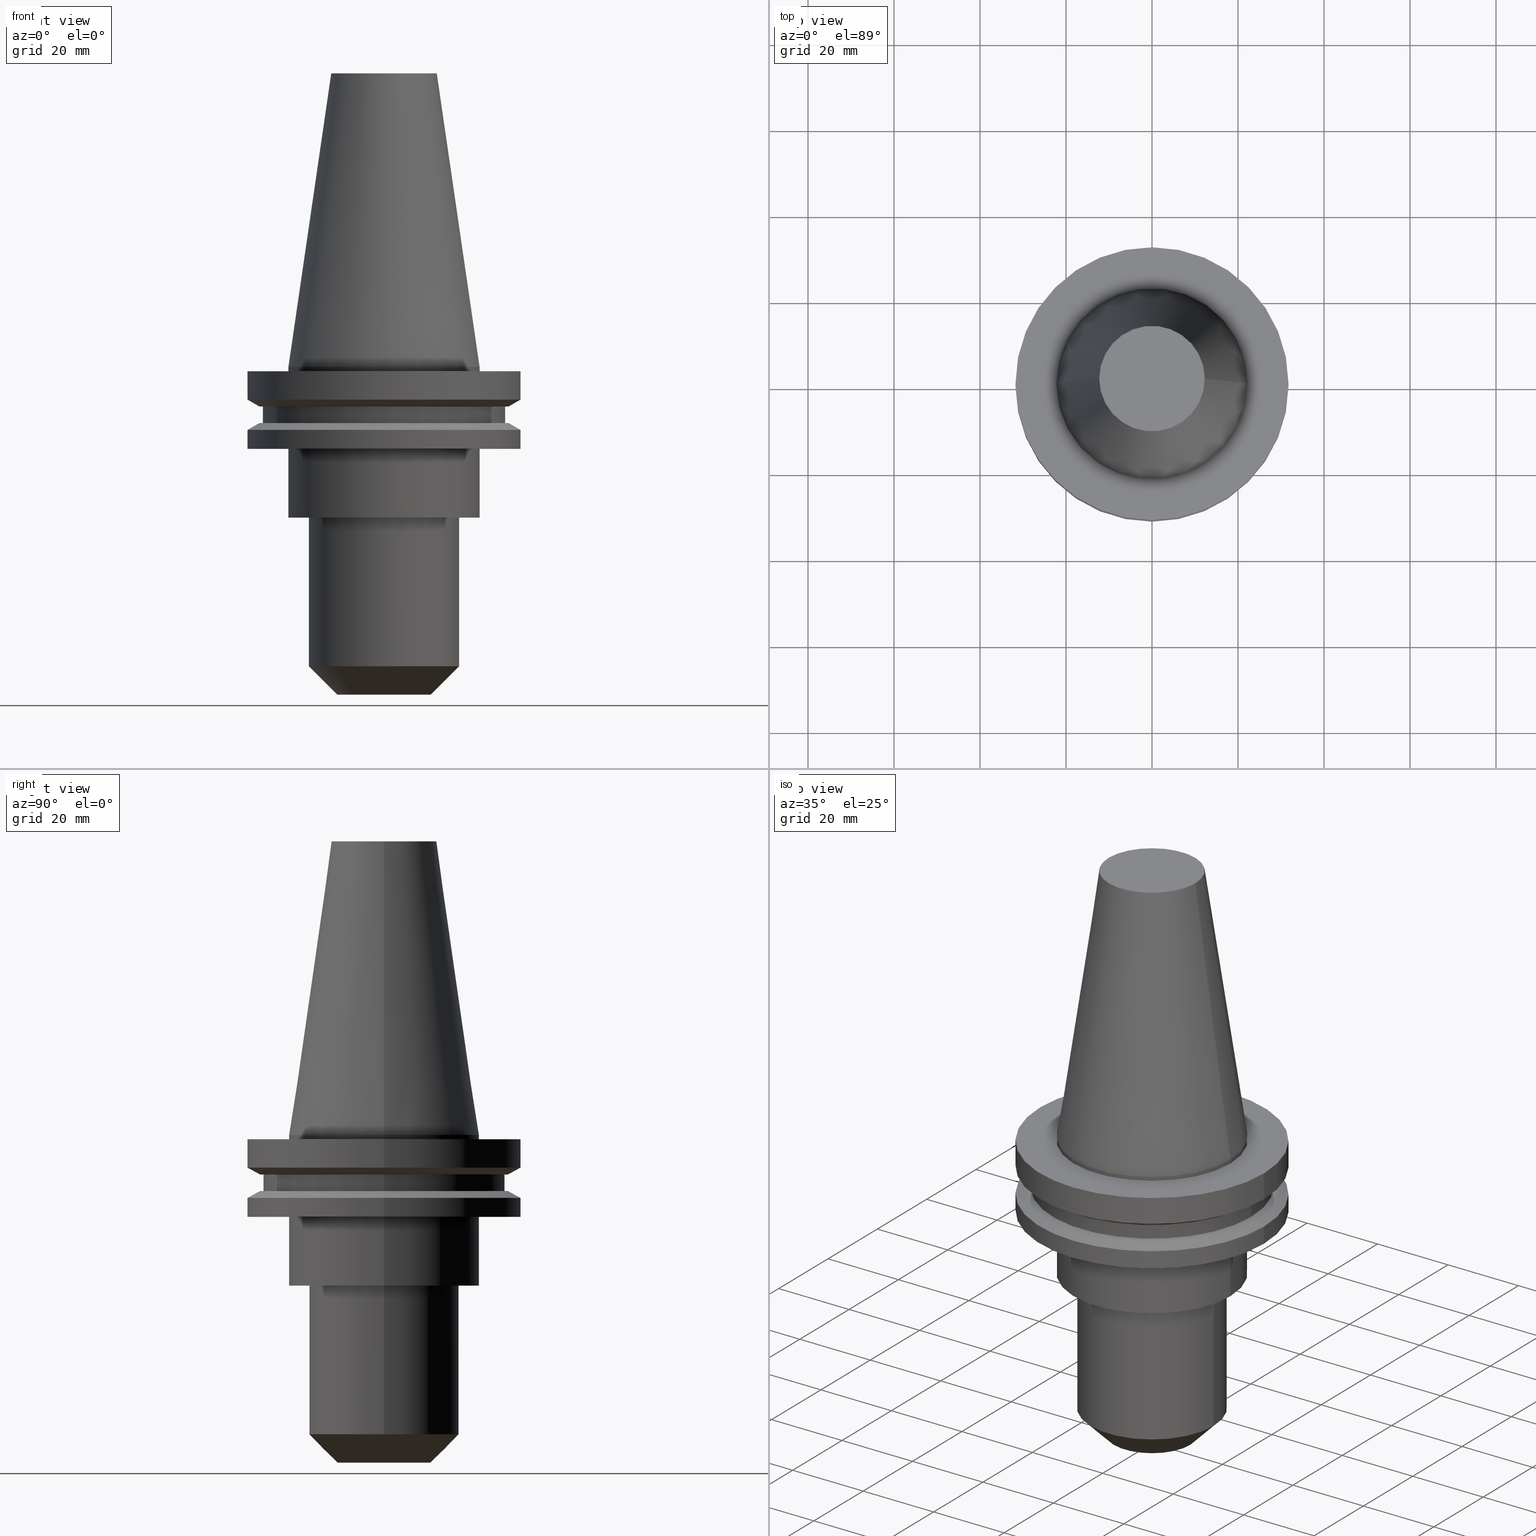
[diagram: canonical four-view strip — front | top / right | iso, engineering-drawing reading convention]
A machine part, canonical four-view strip (front | top / right | iso — engineering-drawing reading convention). The complete STEP part file that produces these views, byte-faithful:
ISO-10303-21;
HEADER;
FILE_DESCRIPTION (( 'STEP AP203' ),
    '1' );
FILE_NAME ('BCV40-EM_500-3.STEP',
    '2022-02-23T14:47:51',
    ( '' ),
    ( '' ),
    'SwSTEP 2.0',
    'SolidWorks 2021',
    '' );
FILE_SCHEMA (( 'CONFIG_CONTROL_DESIGN' ));
ENDSEC;

DATA;
#1 = CARTESIAN_POINT ( 'NONE',  ( 0.000000000000000000, 0.000000000000000000, -76.20000000000000284 ) ) ;
#2 = AXIS2_PLACEMENT_3D ( 'NONE', #677, #486, #147 ) ;
#3 = CYLINDRICAL_SURFACE ( 'NONE', #479, 28.17999999999999972 ) ;
#4 = CALENDAR_DATE ( 2022, 23, 2 ) ;
#5 = DIRECTION ( 'NONE',  ( 1.000000000000000000, 0.000000000000000000, 0.000000000000000000 ) ) ;
#6 = CARTESIAN_POINT ( 'NONE',  ( 0.000000000000000000, 0.000000000000000000, 68.25000000000000000 ) ) ;
#7 = ORIENTED_EDGE ( 'NONE', *, *, #653, .T. ) ;
#8 = PERSON_AND_ORGANIZATION ( #448, #436 ) ;
#9 = ADVANCED_FACE ( 'NONE', ( #466, #211 ), #84, .F. ) ;
#10 = DIRECTION ( 'NONE',  ( -0.000000000000000000, -0.000000000000000000, 1.000000000000000000 ) ) ;
#11 = DIRECTION ( 'NONE',  ( 1.000000000000000000, 0.000000000000000000, 0.000000000000000000 ) ) ;
#12 = ORIENTED_EDGE ( 'NONE', *, *, #563, .T. ) ;
#13 = CIRCLE ( 'NONE', #500, 22.22499999999999787 ) ;
#14 = CC_DESIGN_PERSON_AND_ORGANIZATION_ASSIGNMENT ( #8, #784, ( #227 ) ) ;
#15 = FACE_BOUND ( 'NONE', #578, .T. ) ;
#16 = VERTEX_POINT ( 'NONE', #205 ) ;
#17 = LOCAL_TIME ( 8, 47, 51.00000000000000000, #192 ) ;
#18 = EDGE_LOOP ( 'NONE', ( #798, #747 ) ) ;
#19 = EDGE_CURVE ( 'NONE', #98, #388, #710, .T. ) ;
#20 = DIRECTION ( 'NONE',  ( -0.000000000000000000, -0.000000000000000000, 1.000000000000000000 ) ) ;
#21 = DIRECTION ( 'NONE',  ( 0.7071067811865487940, 0.000000000000000000, 0.7071067811865463515 ) ) ;
#22 = VERTEX_POINT ( 'NONE', #331 ) ;
#23 = DIRECTION ( 'NONE',  ( -0.000000000000000000, -0.000000000000000000, 1.000000000000000000 ) ) ;
#24 = CARTESIAN_POINT ( 'NONE',  ( 0.000000000000000000, 0.000000000000000000, -13.05499999999999794 ) ) ;
#25 = EDGE_CURVE ( 'NONE', #109, #351, #323, .T. ) ;
#26 = ORIENTED_EDGE ( 'NONE', *, *, #686, .T. ) ;
#27 = AXIS2_PLACEMENT_3D ( 'NONE', #820, #94, #97 ) ;
#28 = CARTESIAN_POINT ( 'NONE',  ( 28.17999999999999972, 0.000000000000000000, 68.25000000000000000 ) ) ;
#29 = CYLINDRICAL_SURFACE ( 'NONE', #27, 22.22500000000000142 ) ;
#30 = CONICAL_SURFACE ( 'NONE', #266, 31.75000000000000000, 1.047197551196597853 ) ;
#31 = EDGE_LOOP ( 'NONE', ( #95, #676 ) ) ;
#32 = DIRECTION ( 'NONE',  ( 0.8660254037844389297, 0.000000000000000000, 0.4999999999999995004 ) ) ;
#33 = DIRECTION ( 'NONE',  ( -1.000000000000000000, 0.000000000000000000, 0.000000000000000000 ) ) ;
#34 = ADVANCED_FACE ( 'NONE', ( #733 ), #3, .T. ) ;
#35 = ORIENTED_EDGE ( 'NONE', *, *, #757, .F. ) ;
#36 = DIRECTION ( 'NONE',  ( 1.000000000000000000, 0.000000000000000000, 0.000000000000000000 ) ) ;
#37 = EDGE_CURVE ( 'NONE', #388, #98, #408, .T. ) ;
#38 = DIRECTION ( 'NONE',  ( -0.000000000000000000, -0.000000000000000000, 1.000000000000000000 ) ) ;
#39 = VECTOR ( 'NONE', #23, 1000.000000000000000 ) ;
#40 = VERTEX_POINT ( 'NONE', #665 ) ;
#41 = CARTESIAN_POINT ( 'NONE',  ( 31.75000000000000000, 0.000000000000000000, 68.25000000000000000 ) ) ;
#42 = CARTESIAN_POINT ( 'NONE',  ( 6.349999999999998757, 0.000000000000000000, -35.04999999999999716 ) ) ;
#43 = CIRCLE ( 'NONE', #206, 31.75000000000000000 ) ;
#44 = EDGE_LOOP ( 'NONE', ( #543, #787, #54, #332 ) ) ;
#45 = CIRCLE ( 'NONE', #168, 17.46499999999999986 ) ;
#46 = ADVANCED_FACE ( 'NONE', ( #407 ), #613, .F. ) ;
#47 = CARTESIAN_POINT ( 'NONE',  ( 0.000000000000000000, 0.000000000000000000, -13.05499999999999794 ) ) ;
#48 = FACE_OUTER_BOUND ( 'NONE', #485, .T. ) ;
#49 = ADVANCED_FACE ( 'NONE', ( #542 ), #74, .T. ) ;
#50 = VERTEX_POINT ( 'NONE', #527 ) ;
#51 = CYLINDRICAL_SURFACE ( 'NONE', #112, 28.17999999999999972 ) ;
#52 = AXIS2_PLACEMENT_3D ( 'NONE', #574, #181, #242 ) ;
#53 = EDGE_CURVE ( 'NONE', #561, #633, #460, .T. ) ;
#54 = ORIENTED_EDGE ( 'NONE', *, *, #753, .T. ) ;
#55 = DIRECTION ( 'NONE',  ( 1.000000000000000000, 0.000000000000000000, 0.000000000000000000 ) ) ;
#56 = FACE_OUTER_BOUND ( 'NONE', #687, .T. ) ;
#57 = AXIS2_PLACEMENT_3D ( 'NONE', #551, #555, #812 ) ;
#58 = EDGE_CURVE ( 'NONE', #821, #366, #838, .T. ) ;
#59 = EDGE_LOOP ( 'NONE', ( #566, #215 ) ) ;
#60 = PERSON_AND_ORGANIZATION ( #448, #436 ) ;
#61 = APPROVAL_PERSON_ORGANIZATION ( #60, #203, #383 ) ;
#62 = CARTESIAN_POINT ( 'NONE',  ( 0.000000000000000000, 0.000000000000000000, -76.20000000000000284 ) ) ;
#63 = ORIENTED_EDGE ( 'NONE', *, *, #766, .F. ) ;
#64 = CARTESIAN_POINT ( 'NONE',  ( 0.000000000000000000, 0.000000000000000000, -9.205000000000005400 ) ) ;
#65 = DIRECTION ( 'NONE',  ( -0.000000000000000000, -0.000000000000000000, 1.000000000000000000 ) ) ;
#66 = AXIS2_PLACEMENT_3D ( 'NONE', #262, #399, #5 ) ;
#67 = ORIENTED_EDGE ( 'NONE', *, *, #777, .F. ) ;
#68 = FACE_OUTER_BOUND ( 'NONE', #553, .T. ) ;
#69 = APPLICATION_CONTEXT ( 'configuration controlled 3d designs of mechanical parts and assemblies' ) ;
#70 = CARTESIAN_POINT ( 'NONE',  ( 0.000000000000000000, 0.000000000000000000, -19.04999999999999716 ) ) ;
#71 = AXIS2_PLACEMENT_3D ( 'NONE', #311, #309, #513 ) ;
#72 = ORIENTED_EDGE ( 'NONE', *, *, #749, .F. ) ;
#73 = DIRECTION ( 'NONE',  ( -0.000000000000000000, -0.000000000000000000, 1.000000000000000000 ) ) ;
#74 = CYLINDRICAL_SURFACE ( 'NONE', #234, 31.75000000000000000 ) ;
#75 = EDGE_CURVE ( 'NONE', #807, #264, #43, .T. ) ;
#76 = EDGE_LOOP ( 'NONE', ( #312, #810, #81, #453 ) ) ;
#77 = PERSON_AND_ORGANIZATION ( #448, #436 ) ;
#78 = DIRECTION ( 'NONE',  ( 1.000000000000000000, 0.000000000000000000, 0.000000000000000000 ) ) ;
#79 = DIRECTION ( 'NONE',  ( 1.000000000000000000, 0.000000000000000000, 0.000000000000000000 ) ) ;
#80 = CC_DESIGN_PERSON_AND_ORGANIZATION_ASSIGNMENT ( #77, #794, ( #91 ) ) ;
#81 = ORIENTED_EDGE ( 'NONE', *, *, #777, .T. ) ;
#82 = AXIS2_PLACEMENT_3D ( 'NONE', #322, #271, #801 ) ;
#83 = FACE_OUTER_BOUND ( 'NONE', #44, .T. ) ;
#84 = PLANE ( 'NONE',  #198 ) ;
#85 = EDGE_CURVE ( 'NONE', #154, #462, #601, .T. ) ;
#86 = ADVANCED_FACE ( 'NONE', ( #195 ), #136, .T. ) ;
#87 = ORIENTED_EDGE ( 'NONE', *, *, #609, .T. ) ;
#88 = AXIS2_PLACEMENT_3D ( 'NONE', #90, #356, #493 ) ;
#89 = LINE ( 'NONE', #623, #422 ) ;
#90 = CARTESIAN_POINT ( 'NONE',  ( 0.000000000000000000, 0.000000000000000000, 68.25000000000000000 ) ) ;
#91 = SECURITY_CLASSIFICATION ( '', '', #524 ) ;
#92 = ORIENTED_EDGE ( 'NONE', *, *, #108, .F. ) ;
#93 = CARTESIAN_POINT ( 'NONE',  ( 17.46499999999999986, 0.000000000000000000, 0.000000000000000000 ) ) ;
#94 = DIRECTION ( 'NONE',  ( -0.000000000000000000, -0.000000000000000000, 1.000000000000000000 ) ) ;
#95 = ORIENTED_EDGE ( 'NONE', *, *, #300, .T. ) ;
#96 = CARTESIAN_POINT ( 'NONE',  ( -6.349999999999998757, 7.776507174585691177E-16, 0.000000000000000000 ) ) ;
#97 = DIRECTION ( 'NONE',  ( 1.000000000000000000, 0.000000000000000000, 0.000000000000000000 ) ) ;
#98 = VERTEX_POINT ( 'NONE', #340 ) ;
#99 = AXIS2_PLACEMENT_3D ( 'NONE', #662, #38, #427 ) ;
#100 = DIRECTION ( 'NONE',  ( 1.000000000000000000, 0.000000000000000000, 0.000000000000000000 ) ) ;
#101 = ADVANCED_FACE ( 'NONE', ( #806, #478 ), #132, .F. ) ;
#102 = PRODUCT_DEFINITION_SHAPE ( 'NONE', 'NONE',  #715 ) ;
#103 = DIRECTION ( 'NONE',  ( 0.000000000000000000, -0.000000000000000000, 1.000000000000000000 ) ) ;
#104 = AXIS2_PLACEMENT_3D ( 'NONE', #47, #572, #173 ) ;
#105 = ORIENTED_EDGE ( 'NONE', *, *, #656, .T. ) ;
#106 = FACE_OUTER_BOUND ( 'NONE', #269, .T. ) ;
#107 = CYLINDRICAL_SURFACE ( 'NONE', #346, 17.46499999999999986 ) ;
#108 = EDGE_CURVE ( 'NONE', #366, #821, #730, .T. ) ;
#109 = VERTEX_POINT ( 'NONE', #417 ) ;
#110 = CARTESIAN_POINT ( 'NONE',  ( 22.22500000000000142, 0.000000000000000000, 68.25000000000000000 ) ) ;
#111 = CARTESIAN_POINT ( 'NONE',  ( 6.349999999999999645, 0.000000000000000000, -76.20000000000000284 ) ) ;
#112 = AXIS2_PLACEMENT_3D ( 'NONE', #585, #776, #700 ) ;
#113 = ORIENTED_EDGE ( 'NONE', *, *, #608, .T. ) ;
#114 = CYLINDRICAL_SURFACE ( 'NONE', #239, 31.75000000000000000 ) ;
#115 = CARTESIAN_POINT ( 'NONE',  ( 0.000000000000000000, 0.000000000000000000, -69.60000000000000853 ) ) ;
#116 = ORIENTED_EDGE ( 'NONE', *, *, #344, .T. ) ;
#117 = CIRCLE ( 'NONE', #598, 22.22500000000000142 ) ;
#118 = CARTESIAN_POINT ( 'NONE',  ( 0.000000000000000000, 0.000000000000000000, -69.60000000000000853 ) ) ;
#119 = FACE_OUTER_BOUND ( 'NONE', #291, .T. ) ;
#120 = AXIS2_PLACEMENT_3D ( 'NONE', #411, #73, #805 ) ;
#121 = ORIENTED_EDGE ( 'NONE', *, *, #630, .T. ) ;
#122 = DIRECTION ( 'NONE',  ( -0.000000000000000000, -0.000000000000000000, 1.000000000000000000 ) ) ;
#123 = AXIS2_PLACEMENT_3D ( 'NONE', #156, #103, #361 ) ;
#124 = ORIENTED_EDGE ( 'NONE', *, *, #167, .F. ) ;
#125 = PERSON_AND_ORGANIZATION ( #448, #436 ) ;
#126 = ADVANCED_FACE ( 'NONE', ( #559 ), #295, .T. ) ;
#127 = LOCAL_TIME ( 8, 47, 51.00000000000000000, #321 ) ;
#128 = DIRECTION ( 'NONE',  ( 1.000000000000000000, 0.000000000000000000, 0.000000000000000000 ) ) ;
#129 = DIRECTION ( 'NONE',  ( 1.000000000000000000, 0.000000000000000000, 0.000000000000000000 ) ) ;
#130 = PERSON_AND_ORGANIZATION ( #448, #436 ) ;
#131 = CYLINDRICAL_SURFACE ( 'NONE', #711, 22.22500000000000142 ) ;
#132 = PLANE ( 'NONE',  #804 ) ;
#133 = CARTESIAN_POINT ( 'NONE',  ( 0.000000000000000000, 0.000000000000000000, 68.25000000000000000 ) ) ;
#134 = ORIENTED_EDGE ( 'NONE', *, *, #301, .F. ) ;
#135 = EDGE_CURVE ( 'NONE', #280, #501, #13, .T. ) ;
#136 = CONICAL_SURFACE ( 'NONE', #788, 28.97919780457007732, 1.047197551196598297 ) ;
#137 = DATE_AND_TIME ( #652, #17 ) ;
#138 = DIRECTION ( 'NONE',  ( 0.000000000000000000, 0.000000000000000000, -1.000000000000000000 ) ) ;
#139 = PRODUCT_RELATED_PRODUCT_CATEGORY ( 'detail', '', ( #227 ) ) ;
#140 = CARTESIAN_POINT ( 'NONE',  ( 0.000000000000000000, 0.000000000000000000, -19.04999999999999716 ) ) ;
#141 = ORIENTED_EDGE ( 'NONE', *, *, #571, .F. ) ;
#142 = DIRECTION ( 'NONE',  ( 1.000000000000000000, 0.000000000000000000, 0.000000000000000000 ) ) ;
#143 = ADVANCED_FACE ( 'NONE', ( #621 ), #226, .F. ) ;
#144 = CARTESIAN_POINT ( 'NONE',  ( 0.000000000000000000, 0.000000000000000000, -9.205000000000005400 ) ) ;
#145 = ORIENTED_EDGE ( 'NONE', *, *, #360, .F. ) ;
#146 = VECTOR ( 'NONE', #355, 1000.000000000000000 ) ;
#147 = DIRECTION ( 'NONE',  ( 1.000000000000000000, 0.000000000000000000, 0.000000000000000000 ) ) ;
#148 = CARTESIAN_POINT ( 'NONE',  ( 0.000000000000000000, 0.000000000000000000, -35.04999999999999716 ) ) ;
#149 = VERTEX_POINT ( 'NONE', #353 ) ;
#150 = CARTESIAN_POINT ( 'NONE',  ( 0.000000000000000000, 0.000000000000000000, -76.20000000000000284 ) ) ;
#151 = EDGE_CURVE ( 'NONE', #501, #280, #278, .T. ) ;
#152 = FACE_OUTER_BOUND ( 'NONE', #469, .T. ) ;
#153 = AXIS2_PLACEMENT_3D ( 'NONE', #752, #680, #220 ) ;
#154 = VERTEX_POINT ( 'NONE', #635 ) ;
#155 = DIRECTION ( 'NONE',  ( -1.000000000000000000, 0.000000000000000000, 0.000000000000000000 ) ) ;
#156 = CARTESIAN_POINT ( 'NONE',  ( 0.000000000000000000, 22.22499999999999787, -35.04999999999999716 ) ) ;
#157 = CLOSED_SHELL ( 'NONE', ( #568, #738, #252, #447, #773, #499, #405, #697, #49, #319, #464, #251, #235, #143, #324, #237, #279, #727, #696, #34, #477, #86, #126, #101, #225, #591, #670, #9, #839, #46 ) ) ;
#158 = ORIENTED_EDGE ( 'NONE', *, *, #825, .F. ) ;
#159 = CIRCLE ( 'NONE', #341, 28.97919780457007732 ) ;
#160 = DIRECTION ( 'NONE',  ( 1.000000000000000000, 0.000000000000000000, 0.000000000000000000 ) ) ;
#161 = CARTESIAN_POINT ( 'NONE',  ( 0.000000000000000000, 31.74999999999999289, -19.04999999999999716 ) ) ;
#162 = EDGE_CURVE ( 'NONE', #761, #233, #690, .T. ) ;
#163 = ORIENTED_EDGE ( 'NONE', *, *, #627, .T. ) ;
#164 = CONICAL_SURFACE ( 'NONE', #625, 22.22500000000000142, 0.1448138465474119174 ) ;
#165 = CYLINDRICAL_SURFACE ( 'NONE', #685, 17.46499999999999986 ) ;
#166 = DIRECTION ( 'NONE',  ( 0.000000000000000000, 0.000000000000000000, -1.000000000000000000 ) ) ;
#167 = EDGE_CURVE ( 'NONE', #40, #410, #316, .T. ) ;
#168 = AXIS2_PLACEMENT_3D ( 'NONE', #616, #620, #160 ) ;
#169 = ORIENTED_EDGE ( 'NONE', *, *, #560, .T. ) ;
#170 = FACE_OUTER_BOUND ( 'NONE', #187, .T. ) ;
#171 = CARTESIAN_POINT ( 'NONE',  ( 10.86499999999998423, 0.000000000000000000, -76.20000000000000284 ) ) ;
#172 = EDGE_LOOP ( 'NONE', ( #692, #813, #310, #320 ) ) ;
#173 = DIRECTION ( 'NONE',  ( 1.000000000000000000, 0.000000000000000000, 0.000000000000000000 ) ) ;
#174 = CARTESIAN_POINT ( 'NONE',  ( 28.97919780457007732, 0.000000000000000000, -9.205000000000005400 ) ) ;
#175 = CIRCLE ( 'NONE', #120, 12.27178102086201150 ) ;
#176 = ORIENTED_EDGE ( 'NONE', *, *, #749, .T. ) ;
#177 = LINE ( 'NONE', #110, #373 ) ;
#178 = LINE ( 'NONE', #708, #428 ) ;
#179 = CIRCLE ( 'NONE', #334, 28.97919780457008088 ) ;
#180 = DIRECTION ( 'NONE',  ( 1.000000000000000000, 0.000000000000000000, 0.000000000000000000 ) ) ;
#181 = DIRECTION ( 'NONE',  ( -0.000000000000000000, -0.000000000000000000, 1.000000000000000000 ) ) ;
#182 = VERTEX_POINT ( 'NONE', #684 ) ;
#183 = CARTESIAN_POINT ( 'NONE',  ( 0.000000000000000000, 0.000000000000000000, 0.000000000000000000 ) ) ;
#184 = DIRECTION ( 'NONE',  ( 1.000000000000000000, 0.000000000000000000, 0.000000000000000000 ) ) ;
#185 = AXIS2_PLACEMENT_3D ( 'NONE', #516, #507, #780 ) ;
#186 = AXIS2_PLACEMENT_3D ( 'NONE', #317, #709, #569 ) ;
#187 = EDGE_LOOP ( 'NONE', ( #619, #840, #721, #783 ) ) ;
#188 = CALENDAR_DATE ( 2022, 23, 2 ) ;
#189 = FACE_OUTER_BOUND ( 'NONE', #337, .T. ) ;
#190 = DIRECTION ( 'NONE',  ( 0.000000000000000000, -0.000000000000000000, 1.000000000000000000 ) ) ;
#191 = ORIENTED_EDGE ( 'NONE', *, *, #495, .F. ) ;
#192 = COORDINATED_UNIVERSAL_TIME_OFFSET ( 6, 0, .BEHIND. ) ;
#193 = PRODUCT_DEFINITION_FORMATION_WITH_SPECIFIED_SOURCE ( 'ANY', '', #227, .NOT_KNOWN. ) ;
#194 = DIRECTION ( 'NONE',  ( 0.1443082272672999711, 1.767266086135276757E-17, -0.9895327864921755756 ) ) ;
#195 = FACE_OUTER_BOUND ( 'NONE', #515, .T. ) ;
#196 = ORIENTED_EDGE ( 'NONE', *, *, #135, .F. ) ;
#197 = DIRECTION ( 'NONE',  ( 1.000000000000000000, 0.000000000000000000, 0.000000000000000000 ) ) ;
#198 = AXIS2_PLACEMENT_3D ( 'NONE', #802, #473, #199 ) ;
#199 = DIRECTION ( 'NONE',  ( 1.000000000000000000, 0.000000000000000000, 0.000000000000000000 ) ) ;
#200 = VECTOR ( 'NONE', #847, 1000.000000000000000 ) ;
#201 = ORIENTED_EDGE ( 'NONE', *, *, #602, .F. ) ;
#202 = COORDINATED_UNIVERSAL_TIME_OFFSET ( 6, 0, .BEHIND. ) ;
#203 = APPROVAL ( #254, 'UNSPECIFIED' ) ;
#204 = DIRECTION ( 'NONE',  ( 1.000000000000000000, 0.000000000000000000, 0.000000000000000000 ) ) ;
#205 = CARTESIAN_POINT ( 'NONE',  ( -28.97919780457008088, 0.000000000000000000, -13.05499999999999794 ) ) ;
#206 = AXIS2_PLACEMENT_3D ( 'NONE', #719, #391, #263 ) ;
#207 = EDGE_LOOP ( 'NONE', ( #645, #169 ) ) ;
#208 = EDGE_CURVE ( 'NONE', #363, #480, #746, .T. ) ;
#209 = CARTESIAN_POINT ( 'NONE',  ( -22.22500000000000142, 0.000000000000000000, 0.000000000000000000 ) ) ;
#210 =( GEOMETRIC_REPRESENTATION_CONTEXT ( 3 ) GLOBAL_UNCERTAINTY_ASSIGNED_CONTEXT ( ( #450 ) ) GLOBAL_UNIT_ASSIGNED_CONTEXT ( ( #442, #642, #779 ) ) REPRESENTATION_CONTEXT ( 'NONE', 'WORKASPACE' ) );
#211 = FACE_BOUND ( 'NONE', #610, .T. ) ;
#212 = ORIENTED_EDGE ( 'NONE', *, *, #300, .F. ) ;
#213 = FACE_OUTER_BOUND ( 'NONE', #679, .T. ) ;
#214 = DIRECTION ( 'NONE',  ( -0.000000000000000000, -0.000000000000000000, 1.000000000000000000 ) ) ;
#215 = ORIENTED_EDGE ( 'NONE', *, *, #75, .T. ) ;
#216 = CIRCLE ( 'NONE', #484, 31.75000000000000000 ) ;
#217 = DIRECTION ( 'NONE',  ( 0.000000000000000000, 0.000000000000000000, -1.000000000000000000 ) ) ;
#218 = PLANE ( 'NONE',  #290 ) ;
#219 = EDGE_LOOP ( 'NONE', ( #92, #725 ) ) ;
#220 = DIRECTION ( 'NONE',  ( 1.000000000000000000, 0.000000000000000000, 0.000000000000000000 ) ) ;
#221 = CARTESIAN_POINT ( 'NONE',  ( 0.000000000000000000, 0.000000000000000000, -35.04999999999999716 ) ) ;
#222 = VECTOR ( 'NONE', #512, 999.9999999999998863 ) ;
#223 = ORIENTED_EDGE ( 'NONE', *, *, #753, .F. ) ;
#224 = DIRECTION ( 'NONE',  ( 0.000000000000000000, 0.000000000000000000, -1.000000000000000000 ) ) ;
#225 = ADVANCED_FACE ( 'NONE', ( #286 ), #29, .T. ) ;
#226 = PLANE ( 'NONE',  #582 ) ;
#227 = PRODUCT ( 'BCV40-EM_500-3', 'BCV40-EM_500-3', '', ( #260 ) ) ;
#228 = ORIENTED_EDGE ( 'NONE', *, *, #292, .F. ) ;
#229 = AXIS2_PLACEMENT_3D ( 'NONE', #1, #267, #197 ) ;
#230 = CARTESIAN_POINT ( 'NONE',  ( 0.000000000000000000, 0.000000000000000000, 0.000000000000000000 ) ) ;
#231 = EDGE_CURVE ( 'NONE', #351, #109, #432, .T. ) ;
#232 = DIRECTION ( 'NONE',  ( -0.000000000000000000, -0.000000000000000000, 1.000000000000000000 ) ) ;
#233 = VERTEX_POINT ( 'NONE', #816 ) ;
#234 = AXIS2_PLACEMENT_3D ( 'NONE', #268, #65, #532 ) ;
#235 = ADVANCED_FACE ( 'NONE', ( #152 ), #164, .T. ) ;
#236 = DIRECTION ( 'NONE',  ( 1.000000000000000000, 0.000000000000000000, 0.000000000000000000 ) ) ;
#237 = ADVANCED_FACE ( 'NONE', ( #435, #742 ), #218, .F. ) ;
#238 = DIRECTION ( 'NONE',  ( -0.000000000000000000, -0.000000000000000000, 1.000000000000000000 ) ) ;
#239 = AXIS2_PLACEMENT_3D ( 'NONE', #502, #841, #236 ) ;
#240 = ORIENTED_EDGE ( 'NONE', *, *, #25, .F. ) ;
#241 = CARTESIAN_POINT ( 'NONE',  ( 0.000000000000000000, 0.000000000000000000, 0.000000000000000000 ) ) ;
#242 = DIRECTION ( 'NONE',  ( 1.000000000000000000, 0.000000000000000000, 0.000000000000000000 ) ) ;
#243 = ORIENTED_EDGE ( 'NONE', *, *, #151, .F. ) ;
#244 = DIRECTION ( 'NONE',  ( -0.000000000000000000, -0.000000000000000000, 1.000000000000000000 ) ) ;
#245 = DIRECTION ( 'NONE',  ( -0.000000000000000000, -0.000000000000000000, 1.000000000000000000 ) ) ;
#246 = CIRCLE ( 'NONE', #511, 22.22500000000000142 ) ;
#247 = DIRECTION ( 'NONE',  ( -0.000000000000000000, -0.000000000000000000, 1.000000000000000000 ) ) ;
#248 = CONICAL_SURFACE ( 'NONE', #734, 10.86499999999998423, 0.7853981633974500554 ) ;
#249 = ORIENTED_EDGE ( 'NONE', *, *, #261, .F. ) ;
#250 = CARTESIAN_POINT ( 'NONE',  ( -28.17999999999999972, 3.451054679997241634E-15, -13.05499999999999794 ) ) ;
#251 = ADVANCED_FACE ( 'NONE', ( #424, #681 ), #689, .F. ) ;
#252 = ADVANCED_FACE ( 'NONE', ( #564 ), #107, .T. ) ;
#253 = EDGE_LOOP ( 'NONE', ( #474, #818, #347, #522 ) ) ;
#254 = APPROVAL_STATUS ( 'not_yet_approved' ) ;
#255 = DIRECTION ( 'NONE',  ( -0.000000000000000000, -0.000000000000000000, 1.000000000000000000 ) ) ;
#256 = CC_DESIGN_DATE_AND_TIME_ASSIGNMENT ( #534, #846, ( #91 ) ) ;
#257 = ORIENTED_EDGE ( 'NONE', *, *, #844, .T. ) ;
#258 = CONICAL_SURFACE ( 'NONE', #755, 28.97919780457007732, 1.047197551196598297 ) ;
#259 = ORIENTED_EDGE ( 'NONE', *, *, #58, .T. ) ;
#260 = MECHANICAL_CONTEXT ( 'NONE', #69, 'mechanical' ) ;
#261 = EDGE_CURVE ( 'NONE', #280, #233, #365, .T. ) ;
#262 = CARTESIAN_POINT ( 'NONE',  ( 0.000000000000000000, 0.000000000000000000, -9.205000000000005400 ) ) ;
#263 = DIRECTION ( 'NONE',  ( 1.000000000000000000, 0.000000000000000000, 0.000000000000000000 ) ) ;
#264 = VERTEX_POINT ( 'NONE', #834 ) ;
#265 = APPROVAL_STATUS ( 'not_yet_approved' ) ;
#266 = AXIS2_PLACEMENT_3D ( 'NONE', #628, #217, #492 ) ;
#267 = DIRECTION ( 'NONE',  ( -0.000000000000000000, -0.000000000000000000, 1.000000000000000000 ) ) ;
#268 = CARTESIAN_POINT ( 'NONE',  ( 0.000000000000000000, 0.000000000000000000, 68.25000000000000000 ) ) ;
#269 = EDGE_LOOP ( 'NONE', ( #382, #702, #145, #756 ) ) ;
#270 = PERSON_AND_ORGANIZATION_ROLE ( 'creator' ) ;
#271 = DIRECTION ( 'NONE',  ( 0.000000000000000000, -0.000000000000000000, 1.000000000000000000 ) ) ;
#272 = CARTESIAN_POINT ( 'NONE',  ( 0.000000000000000000, 0.000000000000000000, -9.204999999999991189 ) ) ;
#273 = AXIS2_PLACEMENT_3D ( 'NONE', #736, #138, #786 ) ;
#274 = ORIENTED_EDGE ( 'NONE', *, *, #608, .F. ) ;
#275 = PERSON_AND_ORGANIZATION_ROLE ( 'design_supplier' ) ;
#276 = CARTESIAN_POINT ( 'NONE',  ( 0.000000000000000000, 0.000000000000000000, 68.25000000000000000 ) ) ;
#277 = EDGE_LOOP ( 'NONE', ( #556, #397, #651, #491 ) ) ;
#278 = CIRCLE ( 'NONE', #663, 22.22499999999999787 ) ;
#279 = ADVANCED_FACE ( 'NONE', ( #714 ), #385, .T. ) ;
#280 = VERTEX_POINT ( 'NONE', #644 ) ;
#281 = CARTESIAN_POINT ( 'NONE',  ( 12.27178102086201150, 2.112318622904291439E-15, 68.25000000000000000 ) ) ;
#282 = APPROVAL_PERSON_ORGANIZATION ( #130, #781, #588 ) ;
#283 = CARTESIAN_POINT ( 'NONE',  ( 0.000000000000000000, 22.22499999999999787, -35.04999999999999716 ) ) ;
#284 = VERTEX_POINT ( 'NONE', #510 ) ;
#285 = FACE_OUTER_BOUND ( 'NONE', #358, .T. ) ;
#286 = FACE_OUTER_BOUND ( 'NONE', #76, .T. ) ;
#287 = ORIENTED_EDGE ( 'NONE', *, *, #151, .T. ) ;
#288 = DIRECTION ( 'NONE',  ( -0.8660254037844387076, 0.000000000000000000, -0.4999999999999998890 ) ) ;
#289 = DIRECTION ( 'NONE',  ( -0.000000000000000000, -0.000000000000000000, 1.000000000000000000 ) ) ;
#290 = AXIS2_PLACEMENT_3D ( 'NONE', #161, #431, #750 ) ;
#291 = EDGE_LOOP ( 'NONE', ( #830, #287, #826, #845 ) ) ;
#292 = EDGE_CURVE ( 'NONE', #480, #462, #384, .T. ) ;
#293 = DIRECTION ( 'NONE',  ( 1.000000000000000000, 0.000000000000000000, 0.000000000000000000 ) ) ;
#294 = MANIFOLD_SOLID_BREP ( 'EM', #157 ) ;
#295 = CYLINDRICAL_SURFACE ( 'NONE', #88, 31.75000000000000000 ) ;
#296 = AXIS2_PLACEMENT_3D ( 'NONE', #758, #20, #100 ) ;
#297 = VERTEX_POINT ( 'NONE', #314 ) ;
#298 = DIRECTION ( 'NONE',  ( 1.000000000000000000, 0.000000000000000000, 0.000000000000000000 ) ) ;
#299 = CARTESIAN_POINT ( 'NONE',  ( 0.000000000000000000, 0.000000000000000000, 0.000000000000000000 ) ) ;
#300 = EDGE_CURVE ( 'NONE', #233, #761, #246, .T. ) ;
#301 = EDGE_CURVE ( 'NONE', #50, #149, #445, .T. ) ;
#302 = ORIENTED_EDGE ( 'NONE', *, *, #85, .T. ) ;
#303 = CIRCLE ( 'NONE', #413, 12.27178102086201150 ) ;
#304 = DIRECTION ( 'NONE',  ( -0.000000000000000000, -0.000000000000000000, 1.000000000000000000 ) ) ;
#305 = DIRECTION ( 'NONE',  ( 1.000000000000000000, 0.000000000000000000, 0.000000000000000000 ) ) ;
#306 = VERTEX_POINT ( 'NONE', #111 ) ;
#307 = CIRCLE ( 'NONE', #186, 31.75000000000000000 ) ;
#308 = DIRECTION ( 'NONE',  ( 1.000000000000000000, 0.000000000000000000, 0.000000000000000000 ) ) ;
#309 = DIRECTION ( 'NONE',  ( -0.000000000000000000, -0.000000000000000000, 1.000000000000000000 ) ) ;
#310 = ORIENTED_EDGE ( 'NONE', *, *, #637, .T. ) ;
#311 = CARTESIAN_POINT ( 'NONE',  ( 0.000000000000000000, 0.000000000000000000, 68.25000000000000000 ) ) ;
#312 = ORIENTED_EDGE ( 'NONE', *, *, #785, .F. ) ;
#313 = CIRCLE ( 'NONE', #636, 17.46499999999999986 ) ;
#314 = CARTESIAN_POINT ( 'NONE',  ( 31.75000000000000000, 0.000000000000000000, -14.65472339340266572 ) ) ;
#315 = CARTESIAN_POINT ( 'NONE',  ( -22.22500000000000142, 2.721777511104992849E-15, 68.25000000000000000 ) ) ;
#316 = CIRCLE ( 'NONE', #650, 28.17999999999999972 ) ;
#317 = CARTESIAN_POINT ( 'NONE',  ( 0.000000000000000000, 0.000000000000000000, -14.65472339340266572 ) ) ;
#318 = AXIS2_PLACEMENT_3D ( 'NONE', #150, #497, #293 ) ;
#319 = ADVANCED_FACE ( 'NONE', ( #48 ), #649, .T. ) ;
#320 = ORIENTED_EDGE ( 'NONE', *, *, #609, .F. ) ;
#321 = COORDINATED_UNIVERSAL_TIME_OFFSET ( 6, 0, .BEHIND. ) ;
#322 = CARTESIAN_POINT ( 'NONE',  ( 0.000000000000000000, 28.97919780457007732, -9.204999999999996518 ) ) ;
#323 = CIRCLE ( 'NONE', #646, 22.22500000000000142 ) ;
#324 = ADVANCED_FACE ( 'NONE', ( #119 ), #443, .T. ) ;
#325 = EDGE_LOOP ( 'NONE', ( #803, #302, #228, #342 ) ) ;
#326 = COORDINATED_UNIVERSAL_TIME_OFFSET ( 6, 0, .BEHIND. ) ;
#327 = CARTESIAN_POINT ( 'NONE',  ( -31.75000000000000000, 3.888253587292846476E-15, 68.25000000000000000 ) ) ;
#328 = DIRECTION ( 'NONE',  ( -0.000000000000000000, -0.000000000000000000, 1.000000000000000000 ) ) ;
#329 = VECTOR ( 'NONE', #194, 999.9999999999998863 ) ;
#330 = CARTESIAN_POINT ( 'NONE',  ( -6.350000000000000533, 7.776507174585693149E-16, -76.20000000000000284 ) ) ;
#331 = CARTESIAN_POINT ( 'NONE',  ( -12.27178102086201150, 0.000000000000000000, 68.25000000000000000 ) ) ;
#332 = ORIENTED_EDGE ( 'NONE', *, *, #108, .T. ) ;
#333 = APPROVAL_STATUS ( 'not_yet_approved' ) ;
#334 = AXIS2_PLACEMENT_3D ( 'NONE', #509, #245, #703 ) ;
#335 = CARTESIAN_POINT ( 'NONE',  ( 17.46499999999999986, 0.000000000000000000, -35.04999999999999716 ) ) ;
#336 = DIRECTION ( 'NONE',  ( -0.8660254037844389297, 1.060575238724907285E-16, 0.4999999999999995004 ) ) ;
#337 = EDGE_LOOP ( 'NONE', ( #549, #641 ) ) ;
#338 = LINE ( 'NONE', #459, #782 ) ;
#339 = AXIS2_PLACEMENT_3D ( 'NONE', #70, #401, #597 ) ;
#340 = CARTESIAN_POINT ( 'NONE',  ( -31.74999999999999289, 3.888253587292845687E-15, -19.04999999999999716 ) ) ;
#341 = AXIS2_PLACEMENT_3D ( 'NONE', #717, #726, #128 ) ;
#342 = ORIENTED_EDGE ( 'NONE', *, *, #208, .F. ) ;
#343 = DIRECTION ( 'NONE',  ( -1.000000000000000000, 0.000000000000000000, -0.000000000000000000 ) ) ;
#344 = EDGE_CURVE ( 'NONE', #297, #284, #307, .T. ) ;
#345 = ORIENTED_EDGE ( 'NONE', *, *, #231, .F. ) ;
#346 = AXIS2_PLACEMENT_3D ( 'NONE', #299, #232, #498 ) ;
#347 = ORIENTED_EDGE ( 'NONE', *, *, #375, .T. ) ;
#348 = CYLINDRICAL_SURFACE ( 'NONE', #296, 6.349999999999998757 ) ;
#349 = CC_DESIGN_APPROVAL ( #452, ( #91 ) ) ;
#350 = DIRECTION ( 'NONE',  ( -0.000000000000000000, -0.000000000000000000, 1.000000000000000000 ) ) ;
#351 = VERTEX_POINT ( 'NONE', #577 ) ;
#352 = CARTESIAN_POINT ( 'NONE',  ( 0.000000000000000000, 0.000000000000000000, -35.04999999999999716 ) ) ;
#353 = CARTESIAN_POINT ( 'NONE',  ( 28.17999999999999972, 0.000000000000000000, -9.204999999999991189 ) ) ;
#354 = ORIENTED_EDGE ( 'NONE', *, *, #53, .F. ) ;
#355 = DIRECTION ( 'NONE',  ( -0.000000000000000000, -0.000000000000000000, 1.000000000000000000 ) ) ;
#356 = DIRECTION ( 'NONE',  ( -0.000000000000000000, -0.000000000000000000, 1.000000000000000000 ) ) ;
#357 = VECTOR ( 'NONE', #336, 1000.000000000000000 ) ;
#358 = EDGE_LOOP ( 'NONE', ( #72, #638, #116, #744 ) ) ;
#359 = CARTESIAN_POINT ( 'NONE',  ( 0.000000000000000000, 28.17999999999999972, -13.05499999999999794 ) ) ;
#360 = EDGE_CURVE ( 'NONE', #264, #807, #216, .T. ) ;
#361 = DIRECTION ( 'NONE',  ( 1.000000000000000000, 0.000000000000000000, 0.000000000000000000 ) ) ;
#362 = CONICAL_SURFACE ( 'NONE', #558, 31.75000000000000000, 1.047197551196597853 ) ;
#363 = VERTEX_POINT ( 'NONE', #171 ) ;
#364 = DIRECTION ( 'NONE',  ( -0.000000000000000000, -0.000000000000000000, 1.000000000000000000 ) ) ;
#365 = LINE ( 'NONE', #809, #760 ) ;
#366 = VERTEX_POINT ( 'NONE', #42 ) ;
#367 = VECTOR ( 'NONE', #611, 1000.000000000000000 ) ;
#368 = CYLINDRICAL_SURFACE ( 'NONE', #546, 6.349999999999998757 ) ;
#369 = DIRECTION ( 'NONE',  ( -0.000000000000000000, -0.000000000000000000, 1.000000000000000000 ) ) ;
#370 = ORIENTED_EDGE ( 'NONE', *, *, #627, .F. ) ;
#371 = DIRECTION ( 'NONE',  ( -0.000000000000000000, -0.000000000000000000, 1.000000000000000000 ) ) ;
#372 = DIRECTION ( 'NONE',  ( -0.000000000000000000, -0.000000000000000000, 1.000000000000000000 ) ) ;
#373 = VECTOR ( 'NONE', #304, 1000.000000000000000 ) ;
#374 = ORIENTED_EDGE ( 'NONE', *, *, #766, .T. ) ;
#375 = EDGE_CURVE ( 'NONE', #393, #264, #837, .T. ) ;
#376 = DIRECTION ( 'NONE',  ( -0.000000000000000000, -0.000000000000000000, 1.000000000000000000 ) ) ;
#377 = CARTESIAN_POINT ( 'NONE',  ( 31.74999999999999289, 0.000000000000000000, -19.04999999999999716 ) ) ;
#378 = EDGE_CURVE ( 'NONE', #182, #297, #178, .T. ) ;
#379 = CIRCLE ( 'NONE', #52, 31.75000000000000000 ) ;
#380 = CARTESIAN_POINT ( 'NONE',  ( 0.000000000000000000, 0.000000000000000000, -1.000000000000000888 ) ) ;
#381 = CC_DESIGN_PERSON_AND_ORGANIZATION_ASSIGNMENT ( #799, #270, ( #715 ) ) ;
#382 = ORIENTED_EDGE ( 'NONE', *, *, #418, .T. ) ;
#383 = APPROVAL_ROLE ( '' ) ;
#384 = CIRCLE ( 'NONE', #612, 17.46499999999999986 ) ;
#385 = CYLINDRICAL_SURFACE ( 'NONE', #772, 31.75000000000000000 ) ;
#386 = EDGE_CURVE ( 'NONE', #462, #480, #454, .T. ) ;
#387 = LOCAL_TIME ( 8, 47, 51.00000000000000000, #713 ) ;
#388 = VERTEX_POINT ( 'NONE', #377 ) ;
#389 = CALENDAR_DATE ( 2022, 23, 2 ) ;
#390 = CARTESIAN_POINT ( 'NONE',  ( 0.000000000000000000, 0.000000000000000000, -76.20000000000000284 ) ) ;
#391 = DIRECTION ( 'NONE',  ( -0.000000000000000000, -0.000000000000000000, 1.000000000000000000 ) ) ;
#392 = APPLICATION_CONTEXT ( 'configuration controlled 3d designs of mechanical parts and assemblies' ) ;
#393 = VERTEX_POINT ( 'NONE', #647 ) ;
#394 = SHAPE_DEFINITION_REPRESENTATION ( #102, #797 ) ;
#395 = CARTESIAN_POINT ( 'NONE',  ( 22.22500000000000142, 2.721777511104992849E-15, 0.000000000000000000 ) ) ;
#396 = CARTESIAN_POINT ( 'NONE',  ( 0.000000000000000000, 31.75000000000000000, -0.9999999999999995559 ) ) ;
#397 = ORIENTED_EDGE ( 'NONE', *, *, #19, .T. ) ;
#398 = PERSON_AND_ORGANIZATION_ROLE ( 'creator' ) ;
#399 = DIRECTION ( 'NONE',  ( -0.000000000000000000, -0.000000000000000000, 1.000000000000000000 ) ) ;
#400 = AXIS2_PLACEMENT_3D ( 'NONE', #503, #369, #831 ) ;
#401 = DIRECTION ( 'NONE',  ( -0.000000000000000000, -0.000000000000000000, 1.000000000000000000 ) ) ;
#402 = ORIENTED_EDGE ( 'NONE', *, *, #167, .T. ) ;
#403 = PERSON_AND_ORGANIZATION ( #448, #436 ) ;
#404 = VECTOR ( 'NONE', #416, 1000.000000000000000 ) ;
#405 = ADVANCED_FACE ( 'NONE', ( #56 ), #51, .T. ) ;
#406 = CARTESIAN_POINT ( 'NONE',  ( 0.000000000000000000, 0.000000000000000000, -13.05499999999999794 ) ) ;
#407 = FACE_OUTER_BOUND ( 'NONE', #219, .T. ) ;
#408 = CIRCLE ( 'NONE', #590, 31.74999999999999289 ) ;
#409 = EDGE_CURVE ( 'NONE', #284, #297, #379, .T. ) ;
#410 = VERTEX_POINT ( 'NONE', #250 ) ;
#411 = CARTESIAN_POINT ( 'NONE',  ( 0.000000000000000000, 0.000000000000000000, 68.25000000000000000 ) ) ;
#412 = DIRECTION ( 'NONE',  ( 0.000000000000000000, 0.000000000000000000, -1.000000000000000000 ) ) ;
#413 = AXIS2_PLACEMENT_3D ( 'NONE', #276, #10, #541 ) ;
#414 = CC_DESIGN_PERSON_AND_ORGANIZATION_ASSIGNMENT ( #403, #398, ( #193 ) ) ;
#415 = EDGE_LOOP ( 'NONE', ( #735, #587, #470, #672 ) ) ;
#416 = DIRECTION ( 'NONE',  ( -0.000000000000000000, -0.000000000000000000, 1.000000000000000000 ) ) ;
#417 = CARTESIAN_POINT ( 'NONE',  ( 22.22500000000000142, 0.000000000000000000, -1.000000000000000888 ) ) ;
#418 = EDGE_CURVE ( 'NONE', #393, #633, #800, .T. ) ;
#419 = AXIS2_PLACEMENT_3D ( 'NONE', #594, #796, #11 ) ;
#420 = EDGE_LOOP ( 'NONE', ( #158, #832 ) ) ;
#421 = FACE_OUTER_BOUND ( 'NONE', #603, .T. ) ;
#422 = VECTOR ( 'NONE', #288, 1000.000000000000000 ) ;
#423 = EDGE_CURVE ( 'NONE', #306, #518, #536, .T. ) ;
#424 = FACE_OUTER_BOUND ( 'NONE', #429, .T. ) ;
#425 = EDGE_LOOP ( 'NONE', ( #570, #121, #259, #223 ) ) ;
#426 = DIRECTION ( 'NONE',  ( 1.000000000000000000, 0.000000000000000000, 0.000000000000000000 ) ) ;
#427 = DIRECTION ( 'NONE',  ( 1.000000000000000000, 0.000000000000000000, 0.000000000000000000 ) ) ;
#428 = VECTOR ( 'NONE', #439, 1000.000000000000000 ) ;
#429 = EDGE_LOOP ( 'NONE', ( #196, #243 ) ) ;
#430 = LINE ( 'NONE', #28, #39 ) ;
#431 = DIRECTION ( 'NONE',  ( 0.000000000000000000, -0.000000000000000000, 1.000000000000000000 ) ) ;
#432 = CIRCLE ( 'NONE', #57, 22.22500000000000142 ) ;
#433 = ORIENTED_EDGE ( 'NONE', *, *, #844, .F. ) ;
#434 = LINE ( 'NONE', #96, #404 ) ;
#435 = FACE_OUTER_BOUND ( 'NONE', #18, .T. ) ;
#436 = ORGANIZATION ( 'UNSPECIFIED', 'UNSPECIFIED', '' ) ;
#437 = VERTEX_POINT ( 'NONE', #174 ) ;
#438 = CARTESIAN_POINT ( 'NONE',  ( -22.22500000000000142, 0.000000000000000000, 0.000000000000000000 ) ) ;
#439 = DIRECTION ( 'NONE',  ( 0.8660254037844387076, 1.060575238724906915E-16, -0.4999999999999998890 ) ) ;
#440 = VERTEX_POINT ( 'NONE', #209 ) ;
#441 = VECTOR ( 'NONE', #526, 1000.000000000000000 ) ;
#442 =( LENGTH_UNIT ( ) NAMED_UNIT ( * ) SI_UNIT ( .MILLI., .METRE. ) );
#443 = CYLINDRICAL_SURFACE ( 'NONE', #71, 22.22500000000000142 ) ;
#444 = ORIENTED_EDGE ( 'NONE', *, *, #607, .F. ) ;
#445 = CIRCLE ( 'NONE', #829, 28.17999999999999972 ) ;
#446 = CARTESIAN_POINT ( 'NONE',  ( 0.000000000000000000, 0.000000000000000000, 68.25000000000000000 ) ) ;
#447 = ADVANCED_FACE ( 'NONE', ( #600 ), #131, .T. ) ;
#448 = PERSON ( 'UNSPECIFIED', 'UNSPECIFIED', 'UNSPECIFIED', ('UNSPECIFIED'), ('UNSPECIFIED'), ('UNSPECIFIED') ) ;
#449 = CARTESIAN_POINT ( 'NONE',  ( 0.000000000000000000, 0.000000000000000000, -76.20000000000000284 ) ) ;
#450 = UNCERTAINTY_MEASURE_WITH_UNIT (LENGTH_MEASURE( 1.000000000000000082E-05 ), #442, 'distance_accuracy_value', 'NONE');
#451 = DIRECTION ( 'NONE',  ( 1.000000000000000000, 0.000000000000000000, 0.000000000000000000 ) ) ;
#452 = APPROVAL ( #333, 'UNSPECIFIED' ) ;
#453 = ORIENTED_EDGE ( 'NONE', *, *, #653, .F. ) ;
#454 = CIRCLE ( 'NONE', #579, 17.46499999999999986 ) ;
#455 = EDGE_CURVE ( 'NONE', #501, #761, #338, .T. ) ;
#456 = EDGE_CURVE ( 'NONE', #561, #437, #159, .T. ) ;
#457 = CARTESIAN_POINT ( 'NONE',  ( 31.75000000000000000, 0.000000000000000000, 68.25000000000000000 ) ) ;
#458 = APPROVAL_DATE_TIME ( #530, #452 ) ;
#459 = CARTESIAN_POINT ( 'NONE',  ( -22.22500000000000142, 2.721777511104992849E-15, 68.25000000000000000 ) ) ;
#460 = LINE ( 'NONE', #671, #357 ) ;
#461 = AXIS2_PLACEMENT_3D ( 'NONE', #584, #774, #180 ) ;
#462 = VERTEX_POINT ( 'NONE', #795 ) ;
#463 = DATE_AND_TIME ( #731, #387 ) ;
#464 = ADVANCED_FACE ( 'NONE', ( #68 ), #848, .T. ) ;
#465 = FACE_OUTER_BOUND ( 'NONE', #778, .T. ) ;
#466 = FACE_OUTER_BOUND ( 'NONE', #420, .T. ) ;
#467 = ORIENTED_EDGE ( 'NONE', *, *, #637, .F. ) ;
#468 = FACE_OUTER_BOUND ( 'NONE', #325, .T. ) ;
#469 = EDGE_LOOP ( 'NONE', ( #191, #141, #374, #7 ) ) ;
#470 = ORIENTED_EDGE ( 'NONE', *, *, #344, .F. ) ;
#471 = DIRECTION ( 'NONE',  ( -0.000000000000000000, -0.000000000000000000, 1.000000000000000000 ) ) ;
#472 = VECTOR ( 'NONE', #793, 1000.000000000000000 ) ;
#473 = DIRECTION ( 'NONE',  ( 0.000000000000000000, -0.000000000000000000, 1.000000000000000000 ) ) ;
#474 = ORIENTED_EDGE ( 'NONE', *, *, #544, .F. ) ;
#475 = VECTOR ( 'NONE', #376, 1000.000000000000000 ) ;
#476 = DIRECTION ( 'NONE',  ( -0.000000000000000000, -0.000000000000000000, 1.000000000000000000 ) ) ;
#477 = ADVANCED_FACE ( 'NONE', ( #189, #732 ), #852, .F. ) ;
#478 = FACE_OUTER_BOUND ( 'NONE', #59, .T. ) ;
#479 = AXIS2_PLACEMENT_3D ( 'NONE', #6, #548, #79 ) ;
#480 = VERTEX_POINT ( 'NONE', #593 ) ;
#481 = DIRECTION ( 'NONE',  ( 0.000000000000000000, 0.000000000000000000, -1.000000000000000000 ) ) ;
#482 = EDGE_CURVE ( 'NONE', #154, #363, #565, .T. ) ;
#483 = DIRECTION ( 'NONE',  ( -1.000000000000000000, 0.000000000000000000, -0.000000000000000000 ) ) ;
#484 = AXIS2_PLACEMENT_3D ( 'NONE', #380, #581, #451 ) ;
#485 = EDGE_LOOP ( 'NONE', ( #765, #626, #212, #249 ) ) ;
#486 = DIRECTION ( 'NONE',  ( -0.000000000000000000, -0.000000000000000000, 1.000000000000000000 ) ) ;
#487 = DIRECTION ( 'NONE',  ( 1.000000000000000000, 0.000000000000000000, 0.000000000000000000 ) ) ;
#488 = ORIENTED_EDGE ( 'NONE', *, *, #418, .F. ) ;
#489 = CARTESIAN_POINT ( 'NONE',  ( -31.75000000000000000, 3.888253587292846476E-15, -7.605276606597335842 ) ) ;
#490 = CARTESIAN_POINT ( 'NONE',  ( 0.000000000000000000, 0.000000000000000000, 0.000000000000000000 ) ) ;
#491 = ORIENTED_EDGE ( 'NONE', *, *, #409, .F. ) ;
#492 = DIRECTION ( 'NONE',  ( -1.000000000000000000, 0.000000000000000000, 0.000000000000000000 ) ) ;
#493 = DIRECTION ( 'NONE',  ( 1.000000000000000000, 0.000000000000000000, 0.000000000000000000 ) ) ;
#494 = CONICAL_SURFACE ( 'NONE', #229, 10.86499999999998423, 0.7853981633974500554 ) ;
#495 = EDGE_CURVE ( 'NONE', #657, #505, #531, .T. ) ;
#496 = ORIENTED_EDGE ( 'NONE', *, *, #495, .T. ) ;
#497 = DIRECTION ( 'NONE',  ( -0.000000000000000000, -0.000000000000000000, 1.000000000000000000 ) ) ;
#498 = DIRECTION ( 'NONE',  ( 1.000000000000000000, 0.000000000000000000, 0.000000000000000000 ) ) ;
#499 = ADVANCED_FACE ( 'NONE', ( #465 ), #258, .T. ) ;
#500 = AXIS2_PLACEMENT_3D ( 'NONE', #221, #350, #617 ) ;
#501 = VERTEX_POINT ( 'NONE', #589 ) ;
#502 = CARTESIAN_POINT ( 'NONE',  ( 0.000000000000000000, 0.000000000000000000, 68.25000000000000000 ) ) ;
#503 = CARTESIAN_POINT ( 'NONE',  ( 0.000000000000000000, 0.000000000000000000, 68.25000000000000000 ) ) ;
#504 = CC_DESIGN_APPROVAL ( #781, ( #193 ) ) ;
#505 = VERTEX_POINT ( 'NONE', #395 ) ;
#506 = DIRECTION ( 'NONE',  ( -0.000000000000000000, -0.000000000000000000, 1.000000000000000000 ) ) ;
#507 = DIRECTION ( 'NONE',  ( -0.000000000000000000, -0.000000000000000000, 1.000000000000000000 ) ) ;
#508 = ORIENTED_EDGE ( 'NONE', *, *, #25, .T. ) ;
#509 = CARTESIAN_POINT ( 'NONE',  ( 0.000000000000000000, 0.000000000000000000, -13.05499999999999794 ) ) ;
#510 = CARTESIAN_POINT ( 'NONE',  ( -31.75000000000000000, 3.888253587292846476E-15, -14.65472339340266572 ) ) ;
#511 = AXIS2_PLACEMENT_3D ( 'NONE', #843, #122, #654 ) ;
#512 = DIRECTION ( 'NONE',  ( -0.1443082272672999711, 0.000000000000000000, -0.9895327864921755756 ) ) ;
#513 = DIRECTION ( 'NONE',  ( 1.000000000000000000, 0.000000000000000000, 0.000000000000000000 ) ) ;
#514 = AXIS2_PLACEMENT_3D ( 'NONE', #770, #506, #55 ) ;
#515 = EDGE_LOOP ( 'NONE', ( #354, #667, #854, #35 ) ) ;
#516 = CARTESIAN_POINT ( 'NONE',  ( 0.000000000000000000, 0.000000000000000000, -7.605276606597335842 ) ) ;
#517 = EDGE_CURVE ( 'NONE', #98, #284, #521, .T. ) ;
#518 = VERTEX_POINT ( 'NONE', #330 ) ;
#519 = APPROVAL_DATE_TIME ( #137, #781 ) ;
#520 = CIRCLE ( 'NONE', #66, 28.97919780457007732 ) ;
#521 = LINE ( 'NONE', #604, #441 ) ;
#522 = ORIENTED_EDGE ( 'NONE', *, *, #75, .F. ) ;
#523 = ORIENTED_EDGE ( 'NONE', *, *, #563, .F. ) ;
#524 = SECURITY_CLASSIFICATION_LEVEL ( 'unclassified' ) ;
#525 = AXIS2_PLACEMENT_3D ( 'NONE', #678, #289, #631 ) ;
#526 = DIRECTION ( 'NONE',  ( -0.000000000000000000, -0.000000000000000000, 1.000000000000000000 ) ) ;
#527 = CARTESIAN_POINT ( 'NONE',  ( -28.17999999999999972, 3.451054679997241634E-15, -9.204999999999991189 ) ) ;
#528 = VECTOR ( 'NONE', #32, 1000.000000000000000 ) ;
#529 = EDGE_LOOP ( 'NONE', ( #163, #751 ) ) ;
#530 = DATE_AND_TIME ( #188, #718 ) ;
#531 = LINE ( 'NONE', #658, #329 ) ;
#532 = DIRECTION ( 'NONE',  ( 1.000000000000000000, 0.000000000000000000, 0.000000000000000000 ) ) ;
#533 = ORIENTED_EDGE ( 'NONE', *, *, #586, .F. ) ;
#534 = DATE_AND_TIME ( #4, #127 ) ;
#535 = DIRECTION ( 'NONE',  ( -0.000000000000000000, -0.000000000000000000, 1.000000000000000000 ) ) ;
#536 = CIRCLE ( 'NONE', #674, 6.349999999999999645 ) ;
#537 = DIRECTION ( 'NONE',  ( -0.000000000000000000, -0.000000000000000000, 1.000000000000000000 ) ) ;
#538 = ORIENTED_EDGE ( 'NONE', *, *, #586, .T. ) ;
#539 = APPROVAL_ROLE ( '' ) ;
#540 = CC_DESIGN_PERSON_AND_ORGANIZATION_ASSIGNMENT ( #125, #275, ( #193 ) ) ;
#541 = DIRECTION ( 'NONE',  ( 1.000000000000000000, 0.000000000000000000, 0.000000000000000000 ) ) ;
#542 = FACE_OUTER_BOUND ( 'NONE', #415, .T. ) ;
#543 = ORIENTED_EDGE ( 'NONE', *, *, #630, .F. ) ;
#544 = EDGE_CURVE ( 'NONE', #633, #807, #596, .T. ) ;
#545 = EDGE_CURVE ( 'NONE', #437, #561, #520, .T. ) ;
#546 = AXIS2_PLACEMENT_3D ( 'NONE', #241, #567, #648 ) ;
#547 = DIRECTION ( 'NONE',  ( -0.000000000000000000, -0.000000000000000000, 1.000000000000000000 ) ) ;
#548 = DIRECTION ( 'NONE',  ( -0.000000000000000000, -0.000000000000000000, 1.000000000000000000 ) ) ;
#549 = ORIENTED_EDGE ( 'NONE', *, *, #545, .F. ) ;
#550 = LINE ( 'NONE', #93, #367 ) ;
#551 = CARTESIAN_POINT ( 'NONE',  ( 0.000000000000000000, 0.000000000000000000, -1.000000000000000888 ) ) ;
#552 = VECTOR ( 'NONE', #471, 1000.000000000000000 ) ;
#553 = EDGE_LOOP ( 'NONE', ( #739, #496, #682, #63 ) ) ;
#554 = CARTESIAN_POINT ( 'NONE',  ( 0.000000000000000000, 0.000000000000000000, -14.65472339340266572 ) ) ;
#555 = DIRECTION ( 'NONE',  ( -0.000000000000000000, -0.000000000000000000, 1.000000000000000000 ) ) ;
#556 = ORIENTED_EDGE ( 'NONE', *, *, #517, .F. ) ;
#557 = PLANE ( 'NONE',  #629 ) ;
#558 = AXIS2_PLACEMENT_3D ( 'NONE', #554, #748, #155 ) ;
#559 = FACE_OUTER_BOUND ( 'NONE', #253, .T. ) ;
#560 = EDGE_CURVE ( 'NONE', #657, #22, #303, .T. ) ;
#561 = VERTEX_POINT ( 'NONE', #791 ) ;
#562 = FACE_OUTER_BOUND ( 'NONE', #425, .T. ) ;
#563 = EDGE_CURVE ( 'NONE', #410, #50, #661, .T. ) ;
#564 = FACE_OUTER_BOUND ( 'NONE', #172, .T. ) ;
#565 = CIRCLE ( 'NONE', #701, 10.86499999999998423 ) ;
#566 = ORIENTED_EDGE ( 'NONE', *, *, #360, .T. ) ;
#567 = DIRECTION ( 'NONE',  ( -0.000000000000000000, -0.000000000000000000, 1.000000000000000000 ) ) ;
#568 = ADVANCED_FACE ( 'NONE', ( #468 ), #494, .T. ) ;
#569 = DIRECTION ( 'NONE',  ( 1.000000000000000000, 0.000000000000000000, 0.000000000000000000 ) ) ;
#570 = ORIENTED_EDGE ( 'NONE', *, *, #686, .F. ) ;
#571 = EDGE_CURVE ( 'NONE', #22, #657, #175, .T. ) ;
#572 = DIRECTION ( 'NONE',  ( -0.000000000000000000, -0.000000000000000000, 1.000000000000000000 ) ) ;
#573 = CC_DESIGN_SECURITY_CLASSIFICATION ( #91, ( #193 ) ) ;
#574 = CARTESIAN_POINT ( 'NONE',  ( 0.000000000000000000, 0.000000000000000000, -14.65472339340266572 ) ) ;
#575 = ORIENTED_EDGE ( 'NONE', *, *, #618, .F. ) ;
#576 = LINE ( 'NONE', #41, #694 ) ;
#577 = CARTESIAN_POINT ( 'NONE',  ( -22.22500000000000142, 2.721777511104992849E-15, -1.000000000000000888 ) ) ;
#578 = EDGE_LOOP ( 'NONE', ( #124, #533 ) ) ;
#579 = AXIS2_PLACEMENT_3D ( 'NONE', #118, #247, #704 ) ;
#580 = LINE ( 'NONE', #438, #222 ) ;
#581 = DIRECTION ( 'NONE',  ( -0.000000000000000000, -0.000000000000000000, 1.000000000000000000 ) ) ;
#582 = AXIS2_PLACEMENT_3D ( 'NONE', #759, #695, #483 ) ;
#583 = VERTEX_POINT ( 'NONE', #335 ) ;
#584 = CARTESIAN_POINT ( 'NONE',  ( 0.000000000000000000, 0.000000000000000000, -76.20000000000000284 ) ) ;
#585 = CARTESIAN_POINT ( 'NONE',  ( 0.000000000000000000, 0.000000000000000000, 68.25000000000000000 ) ) ;
#586 = EDGE_CURVE ( 'NONE', #410, #40, #741, .T. ) ;
#587 = ORIENTED_EDGE ( 'NONE', *, *, #517, .T. ) ;
#588 = APPROVAL_ROLE ( '' ) ;
#589 = CARTESIAN_POINT ( 'NONE',  ( -22.22499999999999787, 2.721777511104992454E-15, -35.04999999999999716 ) ) ;
#590 = AXIS2_PLACEMENT_3D ( 'NONE', #140, #853, #129 ) ;
#591 = ADVANCED_FACE ( 'NONE', ( #213 ), #165, .T. ) ;
#592 = ORIENTED_EDGE ( 'NONE', *, *, #632, .F. ) ;
#593 = CARTESIAN_POINT ( 'NONE',  ( 17.46499999999999986, 0.000000000000000000, -69.60000000000000853 ) ) ;
#594 = CARTESIAN_POINT ( 'NONE',  ( 0.000000000000000000, 0.000000000000000000, -35.04999999999999716 ) ) ;
#595 = EDGE_LOOP ( 'NONE', ( #523, #538, #660, #134 ) ) ;
#596 = LINE ( 'NONE', #327, #200 ) ;
#597 = DIRECTION ( 'NONE',  ( 1.000000000000000000, 0.000000000000000000, 0.000000000000000000 ) ) ;
#598 = AXIS2_PLACEMENT_3D ( 'NONE', #740, #745, #298 ) ;
#599 = EDGE_LOOP ( 'NONE', ( #508, #614, #592, #67 ) ) ;
#600 = FACE_OUTER_BOUND ( 'NONE', #599, .T. ) ;
#601 = LINE ( 'NONE', #606, #472 ) ;
#602 = EDGE_CURVE ( 'NONE', #40, #149, #430, .T. ) ;
#603 = EDGE_LOOP ( 'NONE', ( #257, #176 ) ) ;
#604 = CARTESIAN_POINT ( 'NONE',  ( -31.75000000000000000, 3.888253587292846476E-15, 68.25000000000000000 ) ) ;
#605 = AXIS2_PLACEMENT_3D ( 'NONE', #406, #669, #78 ) ;
#606 = CARTESIAN_POINT ( 'NONE',  ( -10.86499999999998423, 1.330578747273597361E-15, -76.20000000000000284 ) ) ;
#607 = EDGE_CURVE ( 'NONE', #462, #698, #683, .T. ) ;
#608 = EDGE_CURVE ( 'NONE', #583, #698, #313, .T. ) ;
#609 = EDGE_CURVE ( 'NONE', #480, #583, #550, .T. ) ;
#610 = EDGE_LOOP ( 'NONE', ( #835, #26 ) ) ;
#611 = DIRECTION ( 'NONE',  ( -0.000000000000000000, -0.000000000000000000, 1.000000000000000000 ) ) ;
#612 = AXIS2_PLACEMENT_3D ( 'NONE', #115, #238, #640 ) ;
#613 = PLANE ( 'NONE',  #743 ) ;
#614 = ORIENTED_EDGE ( 'NONE', *, *, #785, .T. ) ;
#615 = CIRCLE ( 'NONE', #153, 28.17999999999999972 ) ;
#616 = CARTESIAN_POINT ( 'NONE',  ( 0.000000000000000000, 0.000000000000000000, -35.04999999999999716 ) ) ;
#617 = DIRECTION ( 'NONE',  ( 1.000000000000000000, 0.000000000000000000, 0.000000000000000000 ) ) ;
#618 = EDGE_CURVE ( 'NONE', #437, #393, #688, .T. ) ;
#619 = ORIENTED_EDGE ( 'NONE', *, *, #85, .F. ) ;
#620 = DIRECTION ( 'NONE',  ( 0.000000000000000000, 0.000000000000000000, -1.000000000000000000 ) ) ;
#621 = FACE_OUTER_BOUND ( 'NONE', #207, .T. ) ;
#622 = EDGE_LOOP ( 'NONE', ( #240, #345 ) ) ;
#623 = CARTESIAN_POINT ( 'NONE',  ( -31.75000000000000000, 0.000000000000000000, -14.65472339340266572 ) ) ;
#624 = DIRECTION ( 'NONE',  ( -0.000000000000000000, -0.000000000000000000, 1.000000000000000000 ) ) ;
#625 = AXIS2_PLACEMENT_3D ( 'NONE', #490, #166, #33 ) ;
#626 = ORIENTED_EDGE ( 'NONE', *, *, #455, .T. ) ;
#627 = EDGE_CURVE ( 'NONE', #149, #50, #615, .T. ) ;
#628 = CARTESIAN_POINT ( 'NONE',  ( 0.000000000000000000, 0.000000000000000000, -14.65472339340266572 ) ) ;
#629 = AXIS2_PLACEMENT_3D ( 'NONE', #359, #224, #343 ) ;
#630 = EDGE_CURVE ( 'NONE', #518, #821, #434, .T. ) ;
#631 = DIRECTION ( 'NONE',  ( 1.000000000000000000, 0.000000000000000000, 0.000000000000000000 ) ) ;
#632 = EDGE_CURVE ( 'NONE', #505, #440, #817, .T. ) ;
#633 = VERTEX_POINT ( 'NONE', #489 ) ;
#634 = CARTESIAN_POINT ( 'NONE',  ( -31.75000000000000000, 3.888253587292846476E-15, -1.000000000000000888 ) ) ;
#635 = CARTESIAN_POINT ( 'NONE',  ( -10.86499999999998423, 1.734712190992225046E-15, -76.20000000000000284 ) ) ;
#636 = AXIS2_PLACEMENT_3D ( 'NONE', #352, #481, #822 ) ;
#637 = EDGE_CURVE ( 'NONE', #698, #583, #45, .T. ) ;
#638 = ORIENTED_EDGE ( 'NONE', *, *, #378, .T. ) ;
#639 = CARTESIAN_POINT ( 'NONE',  ( -6.349999999999998757, 7.776507174585691177E-16, -35.04999999999999716 ) ) ;
#640 = DIRECTION ( 'NONE',  ( 1.000000000000000000, 0.000000000000000000, 0.000000000000000000 ) ) ;
#641 = ORIENTED_EDGE ( 'NONE', *, *, #456, .F. ) ;
#642 =( NAMED_UNIT ( * ) PLANE_ANGLE_UNIT ( ) SI_UNIT ( $, .RADIAN. ) );
#643 = CIRCLE ( 'NONE', #318, 6.349999999999999645 ) ;
#644 = CARTESIAN_POINT ( 'NONE',  ( 22.22499999999999787, 0.000000000000000000, -35.04999999999999716 ) ) ;
#645 = ORIENTED_EDGE ( 'NONE', *, *, #571, .T. ) ;
#646 = AXIS2_PLACEMENT_3D ( 'NONE', #728, #328, #737 ) ;
#647 = CARTESIAN_POINT ( 'NONE',  ( 31.75000000000000000, 0.000000000000000000, -7.605276606597335842 ) ) ;
#648 = DIRECTION ( 'NONE',  ( 1.000000000000000000, 0.000000000000000000, 0.000000000000000000 ) ) ;
#649 = CYLINDRICAL_SURFACE ( 'NONE', #400, 22.22500000000000142 ) ;
#650 = AXIS2_PLACEMENT_3D ( 'NONE', #24, #624, #305 ) ;
#651 = ORIENTED_EDGE ( 'NONE', *, *, #836, .T. ) ;
#652 = CALENDAR_DATE ( 2022, 23, 2 ) ;
#653 = EDGE_CURVE ( 'NONE', #440, #505, #117, .T. ) ;
#654 = DIRECTION ( 'NONE',  ( 1.000000000000000000, 0.000000000000000000, 0.000000000000000000 ) ) ;
#655 = LOCAL_TIME ( 8, 47, 51.00000000000000000, #326 ) ;
#656 = EDGE_CURVE ( 'NONE', #16, #284, #89, .T. ) ;
#657 = VERTEX_POINT ( 'NONE', #281 ) ;
#658 = CARTESIAN_POINT ( 'NONE',  ( 22.22500000000000142, 2.721777511104992849E-15, 0.000000000000000000 ) ) ;
#659 = DIRECTION ( 'NONE',  ( 1.000000000000000000, 0.000000000000000000, 0.000000000000000000 ) ) ;
#660 = ORIENTED_EDGE ( 'NONE', *, *, #602, .T. ) ;
#661 = LINE ( 'NONE', #664, #552 ) ;
#662 = CARTESIAN_POINT ( 'NONE',  ( 0.000000000000000000, 0.000000000000000000, -35.04999999999999716 ) ) ;
#663 = AXIS2_PLACEMENT_3D ( 'NONE', #148, #754, #487 ) ;
#664 = CARTESIAN_POINT ( 'NONE',  ( -28.17999999999999972, 3.451054679997241634E-15, 68.25000000000000000 ) ) ;
#665 = CARTESIAN_POINT ( 'NONE',  ( 28.17999999999999972, 0.000000000000000000, -13.05499999999999794 ) ) ;
#666 = CIRCLE ( 'NONE', #514, 31.75000000000000000 ) ;
#667 = ORIENTED_EDGE ( 'NONE', *, *, #456, .T. ) ;
#668 = APPROVAL_DATE_TIME ( #850, #203 ) ;
#669 = DIRECTION ( 'NONE',  ( -0.000000000000000000, -0.000000000000000000, 1.000000000000000000 ) ) ;
#670 = ADVANCED_FACE ( 'NONE', ( #83 ), #348, .F. ) ;
#671 = CARTESIAN_POINT ( 'NONE',  ( -28.97919780457007732, 3.548928183322474856E-15, -9.205000000000005400 ) ) ;
#672 = ORIENTED_EDGE ( 'NONE', *, *, #836, .F. ) ;
#673 = DIRECTION ( 'NONE',  ( -0.000000000000000000, -0.000000000000000000, 1.000000000000000000 ) ) ;
#674 = AXIS2_PLACEMENT_3D ( 'NONE', #62, #768, #184 ) ;
#675 = DIRECTION ( 'NONE',  ( -1.000000000000000000, 0.000000000000000000, -0.000000000000000000 ) ) ;
#676 = ORIENTED_EDGE ( 'NONE', *, *, #162, .T. ) ;
#677 = CARTESIAN_POINT ( 'NONE',  ( 0.000000000000000000, 0.000000000000000000, 0.000000000000000000 ) ) ;
#678 = CARTESIAN_POINT ( 'NONE',  ( 0.000000000000000000, 0.000000000000000000, -19.04999999999999716 ) ) ;
#679 = EDGE_LOOP ( 'NONE', ( #444, #729, #87, #113 ) ) ;
#680 = DIRECTION ( 'NONE',  ( -0.000000000000000000, -0.000000000000000000, 1.000000000000000000 ) ) ;
#681 = FACE_BOUND ( 'NONE', #789, .T. ) ;
#682 = ORIENTED_EDGE ( 'NONE', *, *, #632, .T. ) ;
#683 = LINE ( 'NONE', #808, #146 ) ;
#684 = CARTESIAN_POINT ( 'NONE',  ( 28.97919780457008088, 3.718590885307660666E-15, -13.05499999999999794 ) ) ;
#685 = AXIS2_PLACEMENT_3D ( 'NONE', #230, #547, #426 ) ;
#686 = EDGE_CURVE ( 'NONE', #518, #306, #643, .T. ) ;
#687 = EDGE_LOOP ( 'NONE', ( #402, #12, #370, #201 ) ) ;
#688 = LINE ( 'NONE', #815, #528 ) ;
#689 = PLANE ( 'NONE',  #123 ) ;
#690 = CIRCLE ( 'NONE', #525, 22.22500000000000142 ) ;
#691 = CC_DESIGN_DATE_AND_TIME_ASSIGNMENT ( #463, #722, ( #715 ) ) ;
#692 = ORIENTED_EDGE ( 'NONE', *, *, #292, .T. ) ;
#693 = DIRECTION ( 'NONE',  ( 0.000000000000000000, 0.000000000000000000, 1.000000000000000000 ) ) ;
#694 = VECTOR ( 'NONE', #371, 1000.000000000000000 ) ;
#695 = DIRECTION ( 'NONE',  ( 0.000000000000000000, 0.000000000000000000, -1.000000000000000000 ) ) ;
#696 = ADVANCED_FACE ( 'NONE', ( #15, #421 ), #557, .F. ) ;
#697 = ADVANCED_FACE ( 'NONE', ( #285 ), #362, .T. ) ;
#698 = VERTEX_POINT ( 'NONE', #819 ) ;
#699 = CARTESIAN_POINT ( 'NONE',  ( 6.349999999999998757, 0.000000000000000000, 0.000000000000000000 ) ) ;
#700 = DIRECTION ( 'NONE',  ( 1.000000000000000000, 0.000000000000000000, 0.000000000000000000 ) ) ;
#701 = AXIS2_PLACEMENT_3D ( 'NONE', #390, #476, #142 ) ;
#702 = ORIENTED_EDGE ( 'NONE', *, *, #544, .T. ) ;
#703 = DIRECTION ( 'NONE',  ( 1.000000000000000000, 0.000000000000000000, 0.000000000000000000 ) ) ;
#704 = DIRECTION ( 'NONE',  ( 1.000000000000000000, 0.000000000000000000, 0.000000000000000000 ) ) ;
#705 = EDGE_LOOP ( 'NONE', ( #769, #433, #105, #712 ) ) ;
#706 = APPLICATION_PROTOCOL_DEFINITION ( 'international standard', 'config_control_design', 1994, #69 ) ;
#707 = VECTOR ( 'NONE', #762, 1000.000000000000000 ) ;
#708 = CARTESIAN_POINT ( 'NONE',  ( 31.75000000000000000, 3.888253587292846476E-15, -14.65472339340266572 ) ) ;
#709 = DIRECTION ( 'NONE',  ( -0.000000000000000000, -0.000000000000000000, 1.000000000000000000 ) ) ;
#710 = CIRCLE ( 'NONE', #339, 31.74999999999999289 ) ;
#711 = AXIS2_PLACEMENT_3D ( 'NONE', #133, #673, #204 ) ;
#712 = ORIENTED_EDGE ( 'NONE', *, *, #409, .T. ) ;
#713 = COORDINATED_UNIVERSAL_TIME_OFFSET ( 6, 0, .BEHIND. ) ;
#714 = FACE_OUTER_BOUND ( 'NONE', #277, .T. ) ;
#715 = PRODUCT_DEFINITION ( 'UNKNOWN', '', #193, #851 ) ;
#716 = ORIENTED_EDGE ( 'NONE', *, *, #53, .T. ) ;
#717 = CARTESIAN_POINT ( 'NONE',  ( 0.000000000000000000, 0.000000000000000000, -9.205000000000005400 ) ) ;
#718 = LOCAL_TIME ( 8, 47, 51.00000000000000000, #202 ) ;
#719 = CARTESIAN_POINT ( 'NONE',  ( 0.000000000000000000, 0.000000000000000000, -1.000000000000000888 ) ) ;
#720 = APPROVAL_PERSON_ORGANIZATION ( #790, #452, #539 ) ;
#721 = ORIENTED_EDGE ( 'NONE', *, *, #208, .T. ) ;
#722 = DATE_TIME_ROLE ( 'creation_date' ) ;
#723 = DIRECTION ( 'NONE',  ( 1.000000000000000000, 0.000000000000000000, 0.000000000000000000 ) ) ;
#724 = DIRECTION ( 'NONE',  ( 1.000000000000000000, 0.000000000000000000, 0.000000000000000000 ) ) ;
#725 = ORIENTED_EDGE ( 'NONE', *, *, #58, .F. ) ;
#726 = DIRECTION ( 'NONE',  ( -0.000000000000000000, -0.000000000000000000, 1.000000000000000000 ) ) ;
#727 = ADVANCED_FACE ( 'NONE', ( #811 ), #30, .T. ) ;
#728 = CARTESIAN_POINT ( 'NONE',  ( 0.000000000000000000, 0.000000000000000000, -1.000000000000000888 ) ) ;
#729 = ORIENTED_EDGE ( 'NONE', *, *, #386, .T. ) ;
#730 = CIRCLE ( 'NONE', #99, 6.349999999999998757 ) ;
#731 = CALENDAR_DATE ( 2022, 23, 2 ) ;
#732 = FACE_BOUND ( 'NONE', #529, .T. ) ;
#733 = FACE_OUTER_BOUND ( 'NONE', #595, .T. ) ;
#734 = AXIS2_PLACEMENT_3D ( 'NONE', #449, #364, #308 ) ;
#735 = ORIENTED_EDGE ( 'NONE', *, *, #37, .T. ) ;
#736 = CARTESIAN_POINT ( 'NONE',  ( 0.000000000000000000, 0.000000000000000000, 0.000000000000000000 ) ) ;
#737 = DIRECTION ( 'NONE',  ( 1.000000000000000000, 0.000000000000000000, 0.000000000000000000 ) ) ;
#738 = ADVANCED_FACE ( 'NONE', ( #562 ), #368, .F. ) ;
#739 = ORIENTED_EDGE ( 'NONE', *, *, #560, .F. ) ;
#740 = CARTESIAN_POINT ( 'NONE',  ( 0.000000000000000000, 0.000000000000000000, 0.000000000000000000 ) ) ;
#741 = CIRCLE ( 'NONE', #605, 28.17999999999999972 ) ;
#742 = FACE_BOUND ( 'NONE', #31, .T. ) ;
#743 = AXIS2_PLACEMENT_3D ( 'NONE', #283, #190, #659 ) ;
#744 = ORIENTED_EDGE ( 'NONE', *, *, #656, .F. ) ;
#745 = DIRECTION ( 'NONE',  ( -0.000000000000000000, -0.000000000000000000, 1.000000000000000000 ) ) ;
#746 = LINE ( 'NONE', #823, #814 ) ;
#747 = ORIENTED_EDGE ( 'NONE', *, *, #19, .F. ) ;
#748 = DIRECTION ( 'NONE',  ( 0.000000000000000000, 0.000000000000000000, -1.000000000000000000 ) ) ;
#749 = EDGE_CURVE ( 'NONE', #182, #16, #179, .T. ) ;
#750 = DIRECTION ( 'NONE',  ( 1.000000000000000000, 0.000000000000000000, 0.000000000000000000 ) ) ;
#751 = ORIENTED_EDGE ( 'NONE', *, *, #301, .T. ) ;
#752 = CARTESIAN_POINT ( 'NONE',  ( 0.000000000000000000, 0.000000000000000000, -9.204999999999991189 ) ) ;
#753 = EDGE_CURVE ( 'NONE', #306, #366, #827, .T. ) ;
#754 = DIRECTION ( 'NONE',  ( -0.000000000000000000, -0.000000000000000000, 1.000000000000000000 ) ) ;
#755 = AXIS2_PLACEMENT_3D ( 'NONE', #64, #255, #723 ) ;
#756 = ORIENTED_EDGE ( 'NONE', *, *, #375, .F. ) ;
#757 = EDGE_CURVE ( 'NONE', #633, #393, #666, .T. ) ;
#758 = CARTESIAN_POINT ( 'NONE',  ( 0.000000000000000000, 0.000000000000000000, 0.000000000000000000 ) ) ;
#759 = CARTESIAN_POINT ( 'NONE',  ( 0.000000000000000000, 12.27178102086201150, 68.25000000000000000 ) ) ;
#760 = VECTOR ( 'NONE', #214, 1000.000000000000000 ) ;
#761 = VERTEX_POINT ( 'NONE', #833 ) ;
#762 = DIRECTION ( 'NONE',  ( -0.000000000000000000, -0.000000000000000000, 1.000000000000000000 ) ) ;
#763 = AXIS2_PLACEMENT_3D ( 'NONE', #183, #693, #36 ) ;
#764 = DIRECTION ( 'NONE',  ( -0.000000000000000000, -0.000000000000000000, 1.000000000000000000 ) ) ;
#765 = ORIENTED_EDGE ( 'NONE', *, *, #135, .T. ) ;
#766 = EDGE_CURVE ( 'NONE', #22, #440, #580, .T. ) ;
#767 = LINE ( 'NONE', #315, #707 ) ;
#768 = DIRECTION ( 'NONE',  ( -0.000000000000000000, -0.000000000000000000, 1.000000000000000000 ) ) ;
#769 = ORIENTED_EDGE ( 'NONE', *, *, #378, .F. ) ;
#770 = CARTESIAN_POINT ( 'NONE',  ( 0.000000000000000000, 0.000000000000000000, -7.605276606597335842 ) ) ;
#771 = DIRECTION ( 'NONE',  ( 1.000000000000000000, 0.000000000000000000, 0.000000000000000000 ) ) ;
#772 = AXIS2_PLACEMENT_3D ( 'NONE', #446, #244, #771 ) ;
#773 = ADVANCED_FACE ( 'NONE', ( #106 ), #114, .T. ) ;
#774 = DIRECTION ( 'NONE',  ( -0.000000000000000000, -0.000000000000000000, 1.000000000000000000 ) ) ;
#775 = CIRCLE ( 'NONE', #461, 10.86499999999998423 ) ;
#776 = DIRECTION ( 'NONE',  ( -0.000000000000000000, -0.000000000000000000, 1.000000000000000000 ) ) ;
#777 = EDGE_CURVE ( 'NONE', #109, #505, #177, .T. ) ;
#778 = EDGE_LOOP ( 'NONE', ( #849, #716, #488, #575 ) ) ;
#779 =( NAMED_UNIT ( * ) SI_UNIT ( $, .STERADIAN. ) SOLID_ANGLE_UNIT ( ) );
#780 = DIRECTION ( 'NONE',  ( 1.000000000000000000, 0.000000000000000000, 0.000000000000000000 ) ) ;
#781 = APPROVAL ( #265, 'UNSPECIFIED' ) ;
#782 = VECTOR ( 'NONE', #535, 1000.000000000000000 ) ;
#783 = ORIENTED_EDGE ( 'NONE', *, *, #386, .F. ) ;
#784 = PERSON_AND_ORGANIZATION_ROLE ( 'design_owner' ) ;
#785 = EDGE_CURVE ( 'NONE', #351, #440, #767, .T. ) ;
#786 = DIRECTION ( 'NONE',  ( -1.000000000000000000, 0.000000000000000000, 0.000000000000000000 ) ) ;
#787 = ORIENTED_EDGE ( 'NONE', *, *, #423, .F. ) ;
#788 = AXIS2_PLACEMENT_3D ( 'NONE', #144, #537, #724 ) ;
#789 = EDGE_LOOP ( 'NONE', ( #274, #467 ) ) ;
#790 = PERSON_AND_ORGANIZATION ( #448, #436 ) ;
#791 = CARTESIAN_POINT ( 'NONE',  ( -28.97919780457007732, 3.718590885307660666E-15, -9.205000000000005400 ) ) ;
#792 = CC_DESIGN_APPROVAL ( #203, ( #715 ) ) ;
#793 = DIRECTION ( 'NONE',  ( -0.7071067811865487940, 8.659560562354948882E-17, 0.7071067811865463515 ) ) ;
#794 = PERSON_AND_ORGANIZATION_ROLE ( 'classification_officer' ) ;
#795 = CARTESIAN_POINT ( 'NONE',  ( -17.46499999999999986, 2.138845634710852534E-15, -69.60000000000000853 ) ) ;
#796 = DIRECTION ( 'NONE',  ( -0.000000000000000000, -0.000000000000000000, 1.000000000000000000 ) ) ;
#797 = ADVANCED_BREP_SHAPE_REPRESENTATION ( 'BCV40-EM_500-3', ( #294, #763 ), #210 ) ;
#798 = ORIENTED_EDGE ( 'NONE', *, *, #37, .F. ) ;
#799 = PERSON_AND_ORGANIZATION ( #448, #436 ) ;
#800 = CIRCLE ( 'NONE', #185, 31.75000000000000000 ) ;
#801 = DIRECTION ( 'NONE',  ( 1.000000000000000000, 0.000000000000000000, 0.000000000000000000 ) ) ;
#802 = CARTESIAN_POINT ( 'NONE',  ( 0.000000000000000000, 6.349999999999999645, -76.20000000000000284 ) ) ;
#803 = ORIENTED_EDGE ( 'NONE', *, *, #825, .T. ) ;
#804 = AXIS2_PLACEMENT_3D ( 'NONE', #396, #412, #675 ) ;
#805 = DIRECTION ( 'NONE',  ( 1.000000000000000000, 0.000000000000000000, 0.000000000000000000 ) ) ;
#806 = FACE_BOUND ( 'NONE', #622, .T. ) ;
#807 = VERTEX_POINT ( 'NONE', #634 ) ;
#808 = CARTESIAN_POINT ( 'NONE',  ( -17.46499999999999986, 2.138845634710852534E-15, 0.000000000000000000 ) ) ;
#809 = CARTESIAN_POINT ( 'NONE',  ( 22.22500000000000142, 0.000000000000000000, 68.25000000000000000 ) ) ;
#810 = ORIENTED_EDGE ( 'NONE', *, *, #231, .T. ) ;
#811 = FACE_OUTER_BOUND ( 'NONE', #705, .T. ) ;
#812 = DIRECTION ( 'NONE',  ( 1.000000000000000000, 0.000000000000000000, 0.000000000000000000 ) ) ;
#813 = ORIENTED_EDGE ( 'NONE', *, *, #607, .T. ) ;
#814 = VECTOR ( 'NONE', #21, 1000.000000000000000 ) ;
#815 = CARTESIAN_POINT ( 'NONE',  ( 28.97919780457007732, 0.000000000000000000, -9.205000000000005400 ) ) ;
#816 = CARTESIAN_POINT ( 'NONE',  ( 22.22500000000000142, 0.000000000000000000, -19.04999999999999716 ) ) ;
#817 = CIRCLE ( 'NONE', #2, 22.22500000000000142 ) ;
#818 = ORIENTED_EDGE ( 'NONE', *, *, #757, .T. ) ;
#819 = CARTESIAN_POINT ( 'NONE',  ( -17.46499999999999986, 2.138845634710852534E-15, -35.04999999999999716 ) ) ;
#820 = CARTESIAN_POINT ( 'NONE',  ( 0.000000000000000000, 0.000000000000000000, 68.25000000000000000 ) ) ;
#821 = VERTEX_POINT ( 'NONE', #639 ) ;
#822 = DIRECTION ( 'NONE',  ( 1.000000000000000000, 0.000000000000000000, 0.000000000000000000 ) ) ;
#823 = CARTESIAN_POINT ( 'NONE',  ( 10.86499999999998423, 0.000000000000000000, -76.20000000000000284 ) ) ;
#824 = VECTOR ( 'NONE', #764, 1000.000000000000000 ) ;
#825 = EDGE_CURVE ( 'NONE', #363, #154, #775, .T. ) ;
#826 = ORIENTED_EDGE ( 'NONE', *, *, #261, .T. ) ;
#827 = LINE ( 'NONE', #699, #475 ) ;
#828 = DIRECTION ( 'NONE',  ( 1.000000000000000000, 0.000000000000000000, 0.000000000000000000 ) ) ;
#829 = AXIS2_PLACEMENT_3D ( 'NONE', #272, #372, #828 ) ;
#830 = ORIENTED_EDGE ( 'NONE', *, *, #455, .F. ) ;
#831 = DIRECTION ( 'NONE',  ( 1.000000000000000000, 0.000000000000000000, 0.000000000000000000 ) ) ;
#832 = ORIENTED_EDGE ( 'NONE', *, *, #482, .F. ) ;
#833 = CARTESIAN_POINT ( 'NONE',  ( -22.22500000000000142, 2.721777511104992849E-15, -19.04999999999999716 ) ) ;
#834 = CARTESIAN_POINT ( 'NONE',  ( 31.75000000000000000, 0.000000000000000000, -1.000000000000000888 ) ) ;
#835 = ORIENTED_EDGE ( 'NONE', *, *, #423, .T. ) ;
#836 = EDGE_CURVE ( 'NONE', #388, #297, #576, .T. ) ;
#837 = LINE ( 'NONE', #457, #824 ) ;
#838 = CIRCLE ( 'NONE', #419, 6.349999999999998757 ) ;
#839 = ADVANCED_FACE ( 'NONE', ( #170 ), #248, .T. ) ;
#840 = ORIENTED_EDGE ( 'NONE', *, *, #482, .T. ) ;
#841 = DIRECTION ( 'NONE',  ( -0.000000000000000000, -0.000000000000000000, 1.000000000000000000 ) ) ;
#842 = CIRCLE ( 'NONE', #104, 28.97919780457008088 ) ;
#843 = CARTESIAN_POINT ( 'NONE',  ( 0.000000000000000000, 0.000000000000000000, -19.04999999999999716 ) ) ;
#844 = EDGE_CURVE ( 'NONE', #16, #182, #842, .T. ) ;
#845 = ORIENTED_EDGE ( 'NONE', *, *, #162, .F. ) ;
#846 = DATE_TIME_ROLE ( 'classification_date' ) ;
#847 = DIRECTION ( 'NONE',  ( -0.000000000000000000, -0.000000000000000000, 1.000000000000000000 ) ) ;
#848 = CONICAL_SURFACE ( 'NONE', #273, 22.22500000000000142, 0.1448138465474119174 ) ;
#849 = ORIENTED_EDGE ( 'NONE', *, *, #545, .T. ) ;
#850 = DATE_AND_TIME ( #389, #655 ) ;
#851 = DESIGN_CONTEXT ( 'detailed design', #392, 'design' ) ;
#852 = PLANE ( 'NONE',  #82 ) ;
#853 = DIRECTION ( 'NONE',  ( -0.000000000000000000, -0.000000000000000000, 1.000000000000000000 ) ) ;
#854 = ORIENTED_EDGE ( 'NONE', *, *, #618, .T. ) ;
#855 = APPLICATION_PROTOCOL_DEFINITION ( 'international standard', 'config_control_design', 1994, #392 ) ;
ENDSEC;
END-ISO-10303-21;
